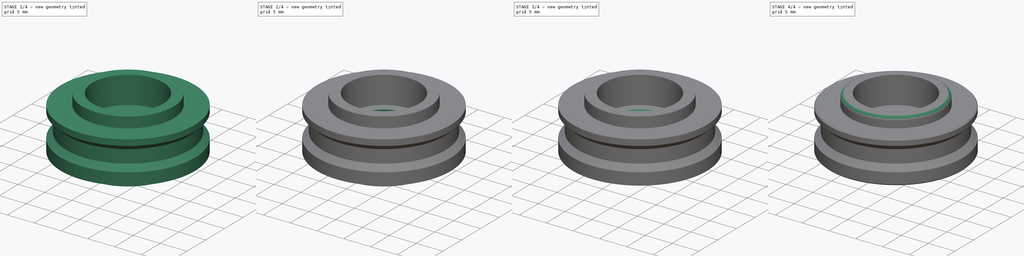
[diagram: build sequence overview — one tinted view per stage of 4, left to right]
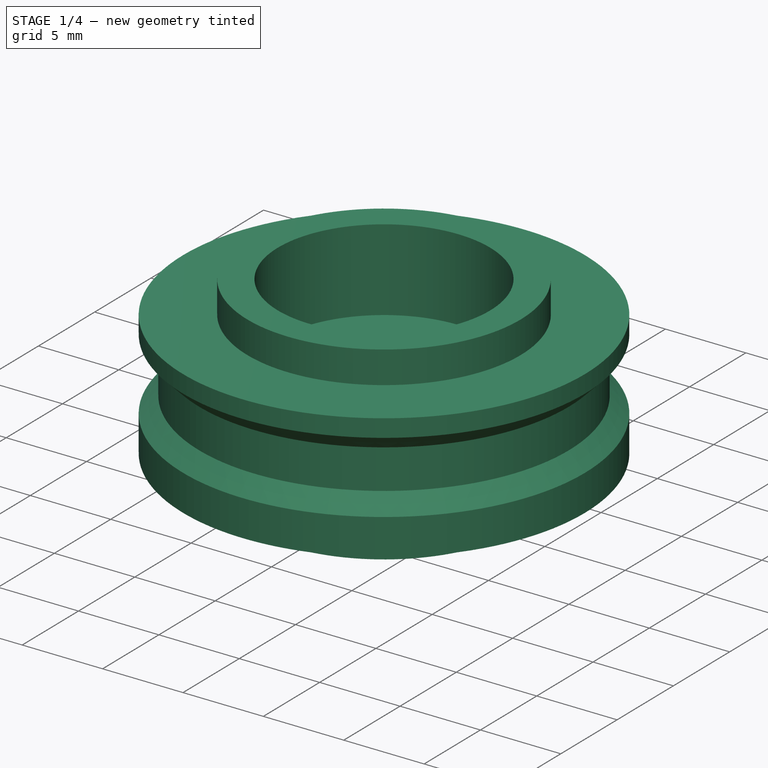
[diagram: stage 1 of 4 — iso view after this stage's code; geometry added in this stage tinted green]
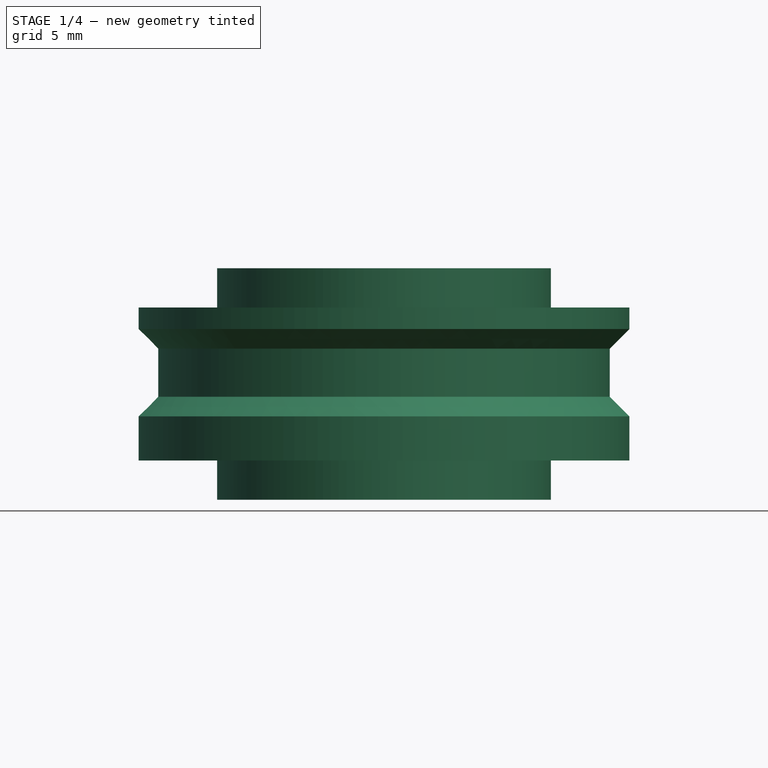
[diagram: stage 1 of 4 — front view after this stage's code; geometry added in this stage tinted green]
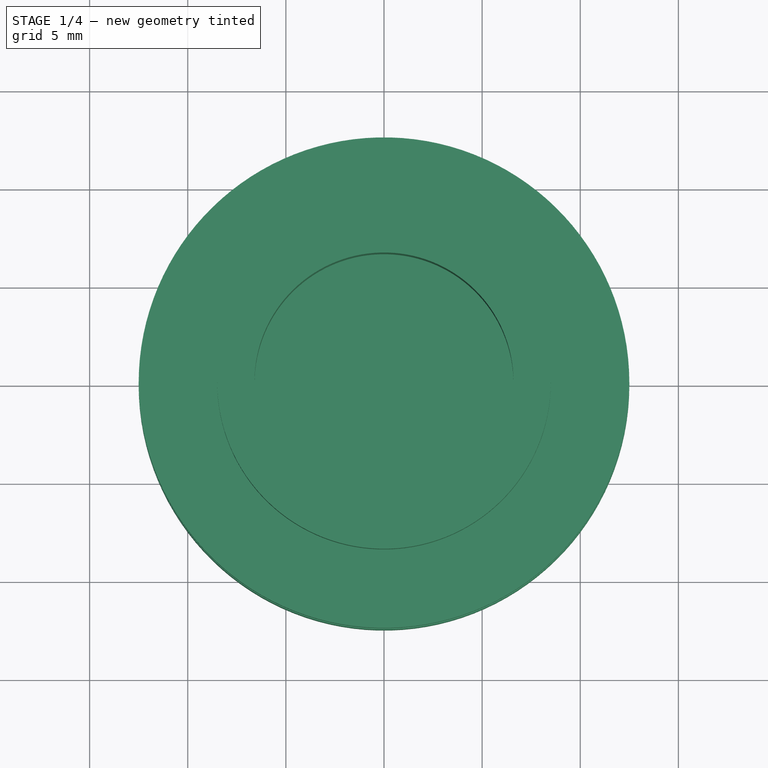
[diagram: stage 1 of 4 — top view after this stage's code; geometry added in this stage tinted green]
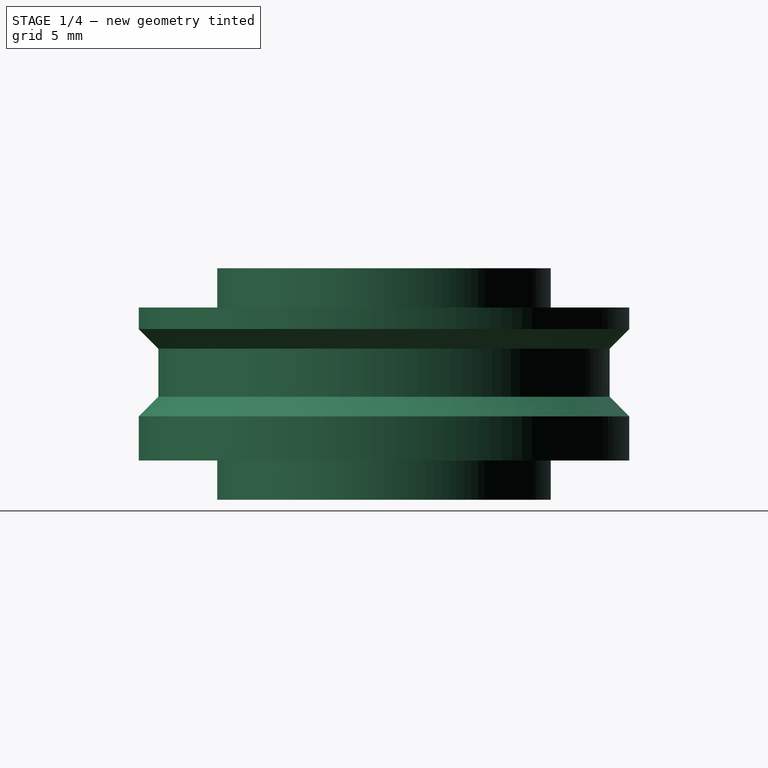
[diagram: stage 1 of 4 — right view after this stage's code; geometry added in this stage tinted green]
FCSTD DOCUMENT  (FreeCAD 0.14R3347 (Git))
Label: pinch-roller
License: CC-BY 3.0
LicenseURL: http://creativecommons.org/licenses/by/3.0/
objects: Sketcher::SketchObject×4, PartDesign::Fillet×4, PartDesign::Pocket×3, Part::Feature×2, PartDesign::Revolution×1, PartDesign::Chamfer×1
note: 19 computed .brp shape members not serialized (recipe doc carries the construction recipe); baked Part::Feature solids carry a one-line shape summary decoded from their .brp

FEATURE [Sketcher::SketchObject] Sketch
  Placement = pos=(0,0,0) rot=(1,0,0;1.5708rad)
  sketch-geometry (12):
    g0: LineSegment StartX=0 StartY=0 StartZ=0 EndX=8.5 EndY=0 EndZ=0
    g1: LineSegment StartX=8.5 StartY=0 StartZ=0 EndX=8.5 EndY=2 EndZ=0
    g2: LineSegment StartX=8.5 StartY=2 StartZ=0 EndX=12.5 EndY=2 EndZ=0
    g3: LineSegment StartX=12.5 StartY=2 StartZ=0 EndX=12.5 EndY=4.25 EndZ=0
    g4: LineSegment StartX=12.5 StartY=4.25 StartZ=0 EndX=11.5 EndY=5.25 EndZ=0
    g5: LineSegment StartX=11.5 StartY=5.25 StartZ=0 EndX=11.5 EndY=7.7 EndZ=0
    g6: LineSegment StartX=11.5 StartY=7.7 StartZ=0 EndX=12.5 EndY=8.7 EndZ=0
    g7: LineSegment StartX=12.5 StartY=8.7 StartZ=0 EndX=12.5 EndY=9.8 EndZ=0
    g8: LineSegment StartX=12.5 StartY=9.8 StartZ=0 EndX=8.5 EndY=9.8 EndZ=0
    g9: LineSegment StartX=8.5 StartY=9.8 StartZ=0 EndX=8.5 EndY=11.8 EndZ=0
    g10: LineSegment StartX=8.5 StartY=11.8 StartZ=0 EndX=0 EndY=11.8 EndZ=0
    g11: LineSegment StartX=0 StartY=11.8 StartZ=0 EndX=0 EndY=0 EndZ=0
  constraints (35):
    c: Horizontal(g0)
    c: Vertical(g1)
    c: Coincident(g1,g2)
    c: Horizontal(g2)
    c: Coincident(g2,g3)
    c: Vertical(g3)
    c: Coincident(g3,g4)
    c: Coincident(g4,g5)
    c: Vertical(g5)
    c: Coincident(g5,g6)
    c: Coincident(g6,g7)
    c: Vertical(g7)
    c: Coincident(g7,g8)
    c: Horizontal(g8)
    c: Coincident(g8,g9)
    c: Vertical(g9)
    c: Coincident(g9,g10)
    c: PointOnObject(g10,g-2)
    c: Horizontal(g10)
    c: Coincident(g10,g11)
    c: Coincident(g11,g-1)
    c: Angle(g4) = 2.35619
    c: Angle(g6) = 0.785398
    c: DistanceY(g7,g6) = -1.1
    c: DistanceY(g3,g2) = -2.25
    c: DistanceY(g2,g7) = 7.8
    c: DistanceX(g3,g4) = -1
    c: DistanceX(g6) = 12.5
    c: DistanceX(g5,g6) = 1
    c: Coincident(g1,g0)
    c: Coincident(g0,g-1)
    c: DistanceX(g0,g2) = 4
    c: Equal(g9,g1)
    c: DistanceY(g1,g0) = -2
    c: Equal(g2,g8)
FEATURE [PartDesign::Revolution] Revolution
  Angle = 360
  Axis = (0,0,1)
  Base = (0,0,0)
  Placement = pos=(0,0,0) rot=(1,0,0;1.5708rad)
  ReferenceAxis = -> Sketch [V_Axis]
  Reversed = true
  Sketch = -> Sketch
FEATURE [Sketcher::SketchObject] Sketch001
  Placement = pos=(0,0,11.8) rot=(0,0,1;3.14159rad)
  Support = -> Revolution [Face11]
  sketch-geometry (1):
    g0: Circle CenterX=0 CenterY=0 CenterZ=0 NormalX=0 NormalY=0 NormalZ=1 Radius=6.6
  constraints (2):
    c: Coincident(g0,g-1)
    c: Radius(g0) = 6.6
FEATURE [PartDesign::Pocket] Pocket
  Length = 5.1
  Placement = pos=(0,0,0) rot=(1,0,0;1.5708rad)
  Sketch = -> Sketch001
  Type = 0
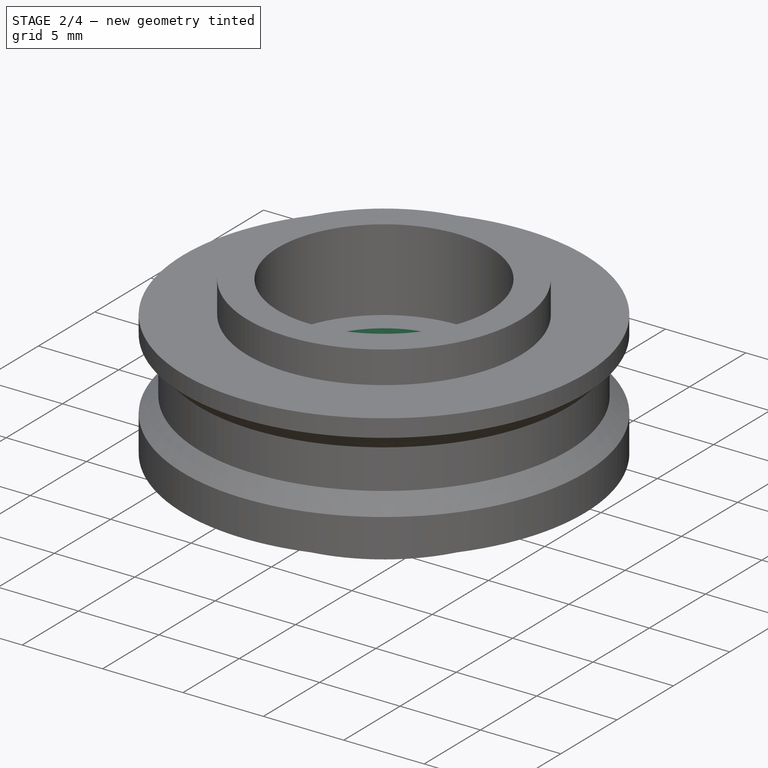
[diagram: stage 2 of 4 — iso view after this stage's code; geometry added in this stage tinted green]
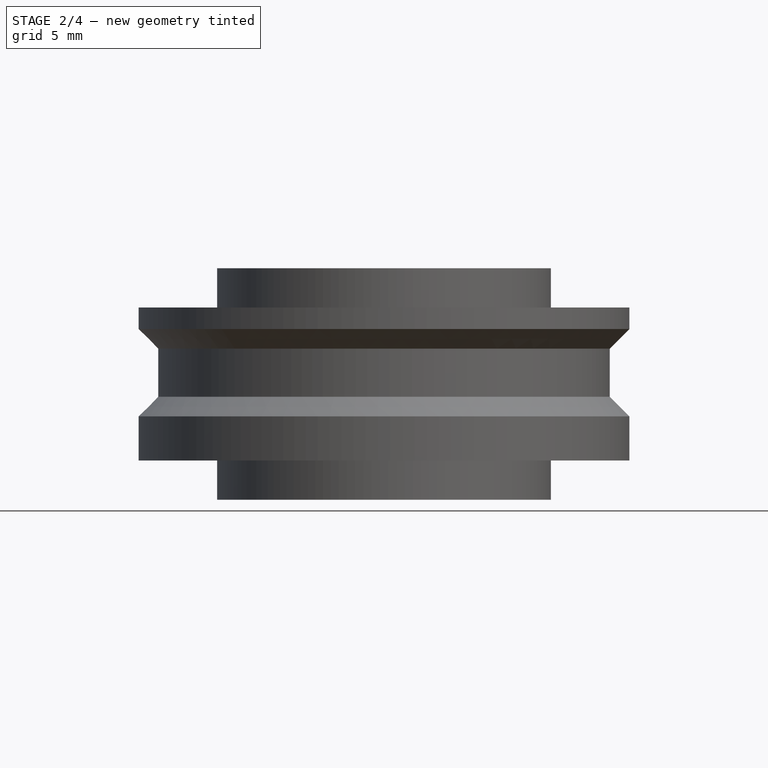
[diagram: stage 2 of 4 — front view after this stage's code; geometry added in this stage tinted green]
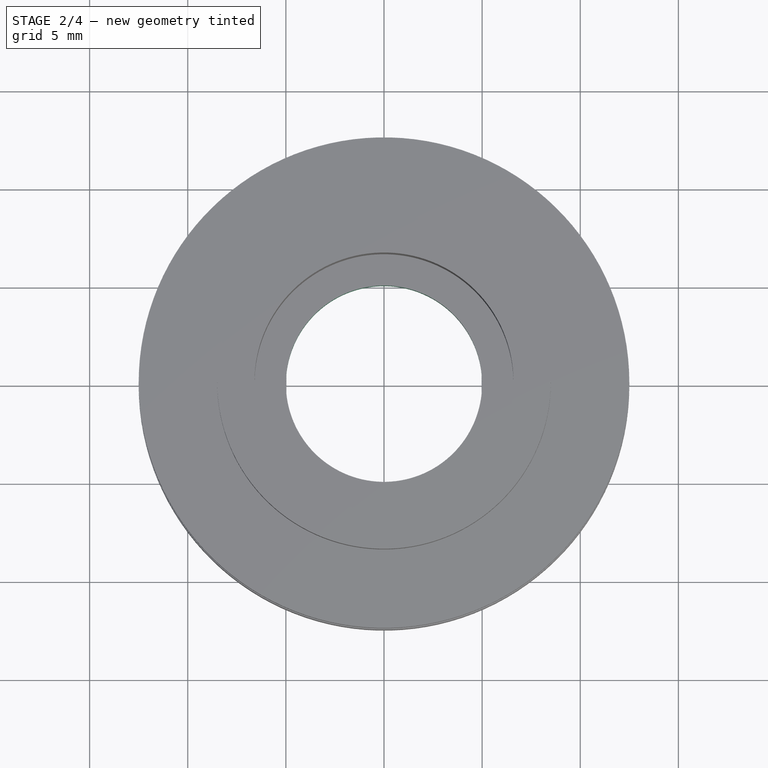
[diagram: stage 2 of 4 — top view after this stage's code; geometry added in this stage tinted green]
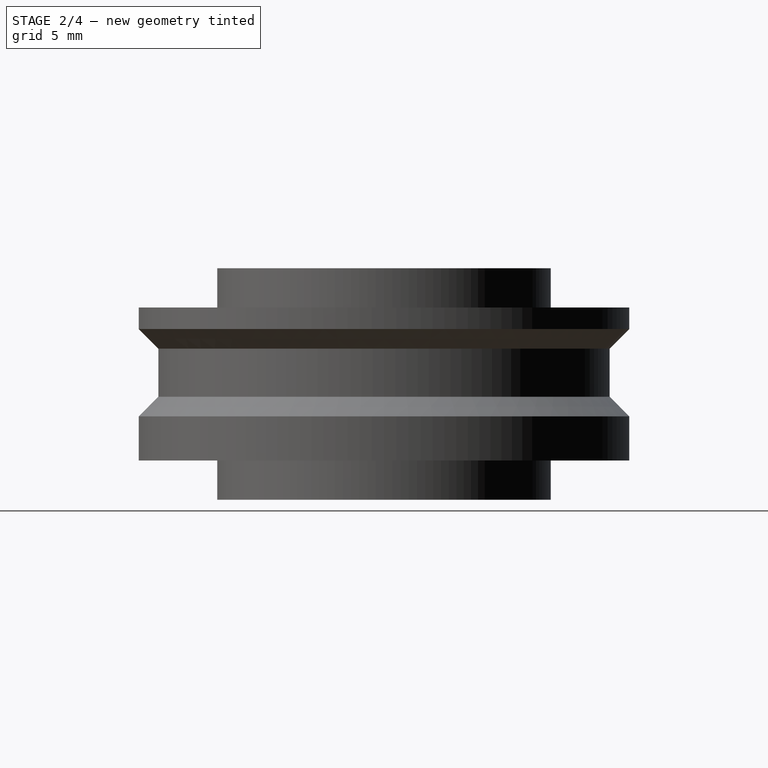
[diagram: stage 2 of 4 — right view after this stage's code; geometry added in this stage tinted green]
FEATURE [Sketcher::SketchObject] Sketch002
  Placement = pos=(0,0,0) rot=(1,0,0;3.14159rad)
  Support = -> Pocket [Face1]
  sketch-geometry (1):
    g0: Circle CenterX=0 CenterY=0 CenterZ=0 NormalX=0 NormalY=0 NormalZ=1 Radius=6.6
  constraints (2):
    c: Coincident(g0,g-1)
    c: Radius(g0) = 6.6
FEATURE [PartDesign::Pocket] Pocket001
  Length = 5
  Placement = pos=(0,0,0) rot=(1,0,0;1.5708rad)
  Sketch = -> Sketch002
  Type = 0
FEATURE [Sketcher::SketchObject] Sketch003
  Placement = pos=(0,0,5) rot=(1,0,0;3.14159rad)
  Support = -> Pocket001 [Face5]
  sketch-geometry (1):
    g0: Circle CenterX=0 CenterY=0 CenterZ=0 NormalX=0 NormalY=0 NormalZ=1 Radius=5
  constraints (2):
    c: Coincident(g0,g-1)
    c: Radius(g0) = 5
FEATURE [PartDesign::Pocket] Pocket002
  Length = 5
  Placement = pos=(0,0,0) rot=(1,0,0;1.5708rad)
  Sketch = -> Sketch003
  Type = 1
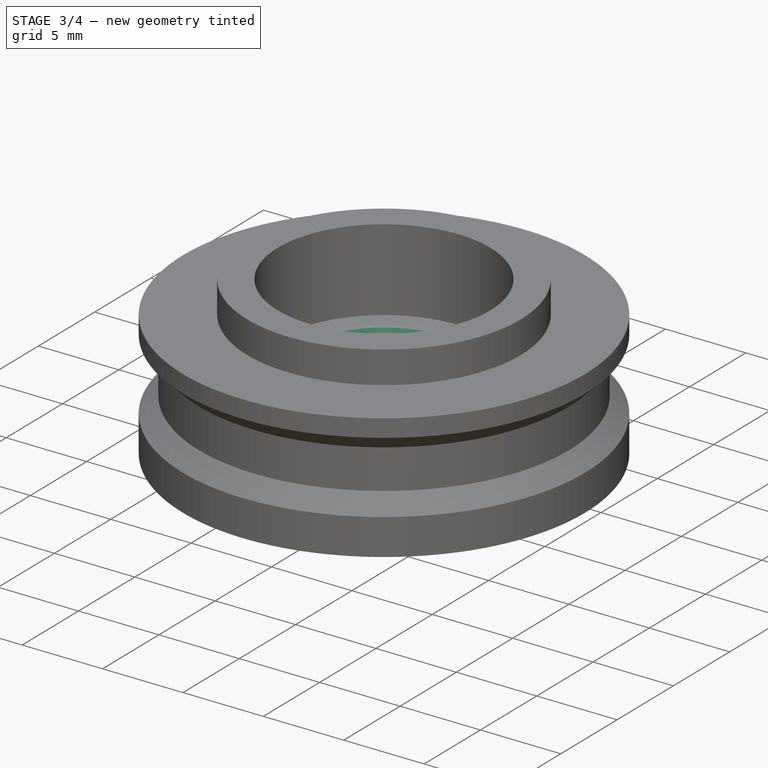
[diagram: stage 3 of 4 — iso view after this stage's code; geometry added in this stage tinted green]
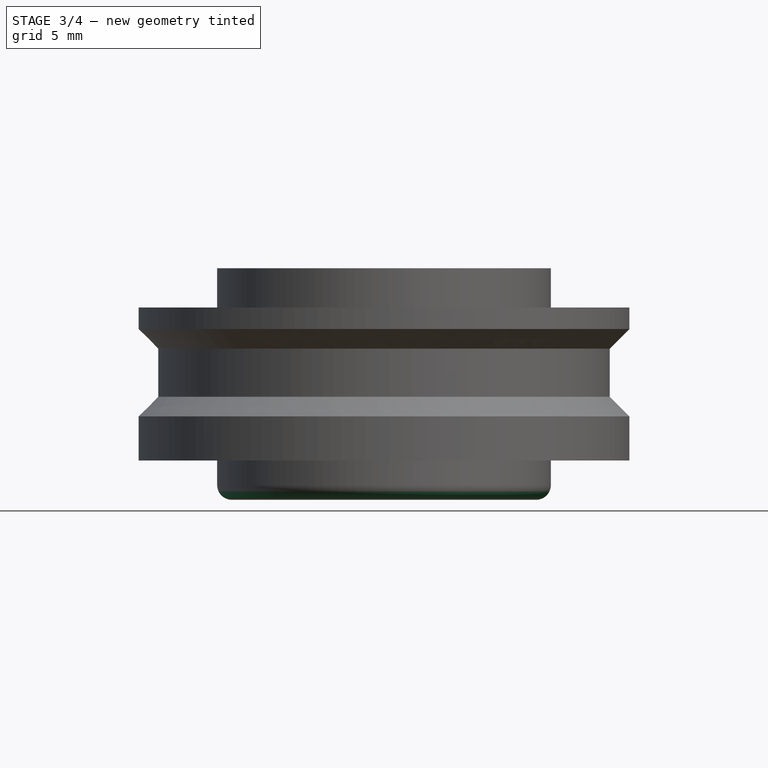
[diagram: stage 3 of 4 — front view after this stage's code; geometry added in this stage tinted green]
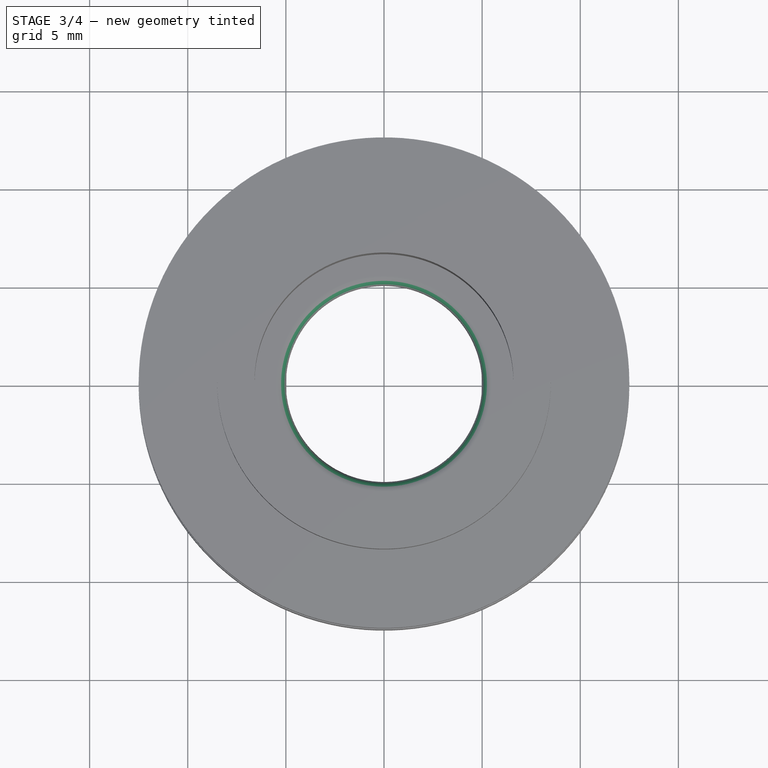
[diagram: stage 3 of 4 — top view after this stage's code; geometry added in this stage tinted green]
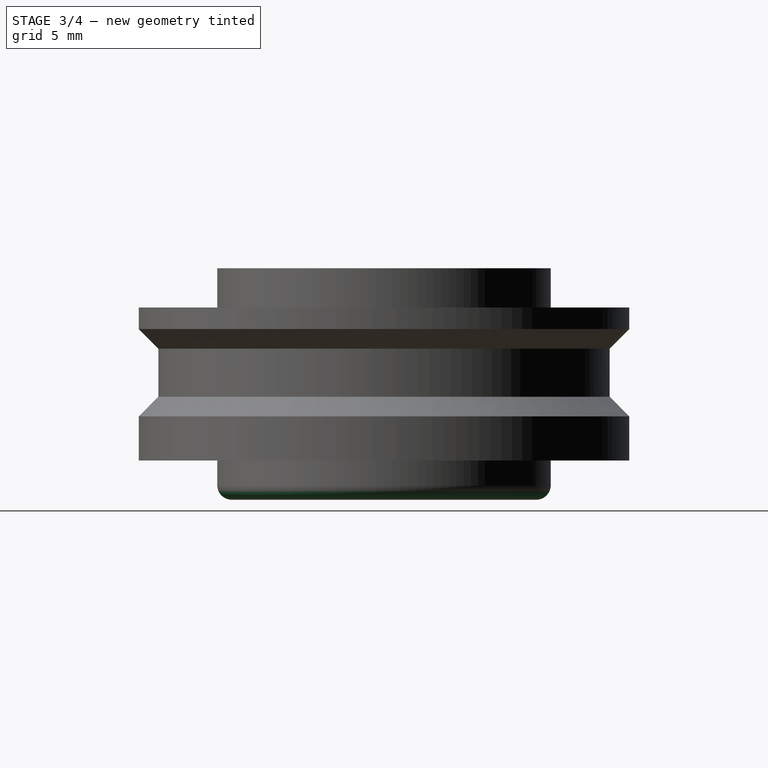
[diagram: stage 3 of 4 — right view after this stage's code; geometry added in this stage tinted green]
FEATURE [PartDesign::Fillet] Fillet
  Base = -> Pocket002 [Edge12]
  Placement = pos=(0,0,0) rot=(1,0,0;1.5708rad)
  Radius = 0.5
FEATURE [PartDesign::Fillet] Fillet001
  Base = -> Fillet [Edge3]
  Placement = pos=(0,0,0) rot=(1,0,0;1.5708rad)
  Radius = 0.5
FEATURE [PartDesign::Fillet] Fillet002
  Base = -> Fillet001 [Edge14]
  Placement = pos=(0,0,0) rot=(1,0,0;1.5708rad)
  Radius = 0.75
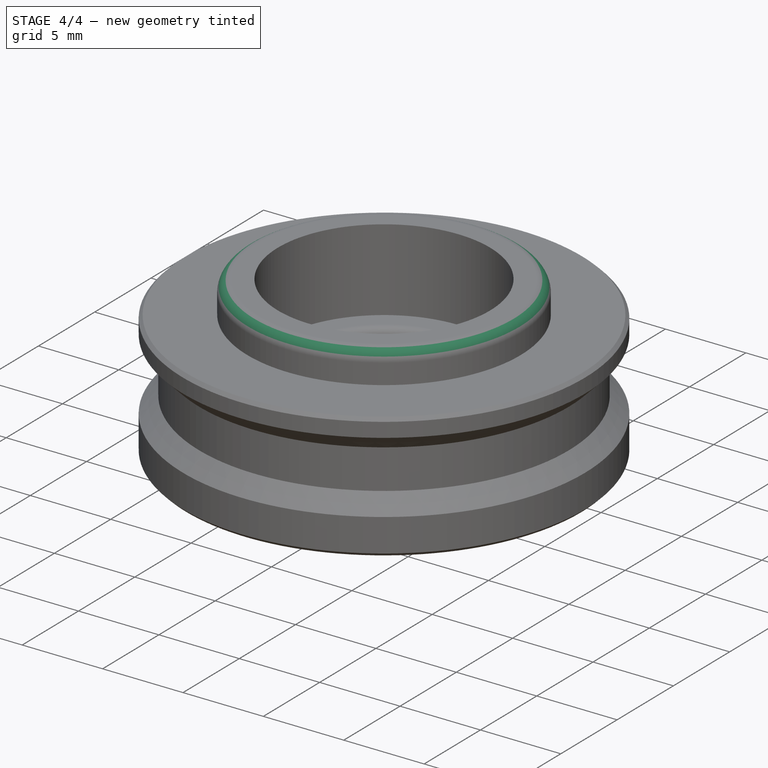
[diagram: stage 4 of 4 — iso view after this stage's code; geometry added in this stage tinted green]
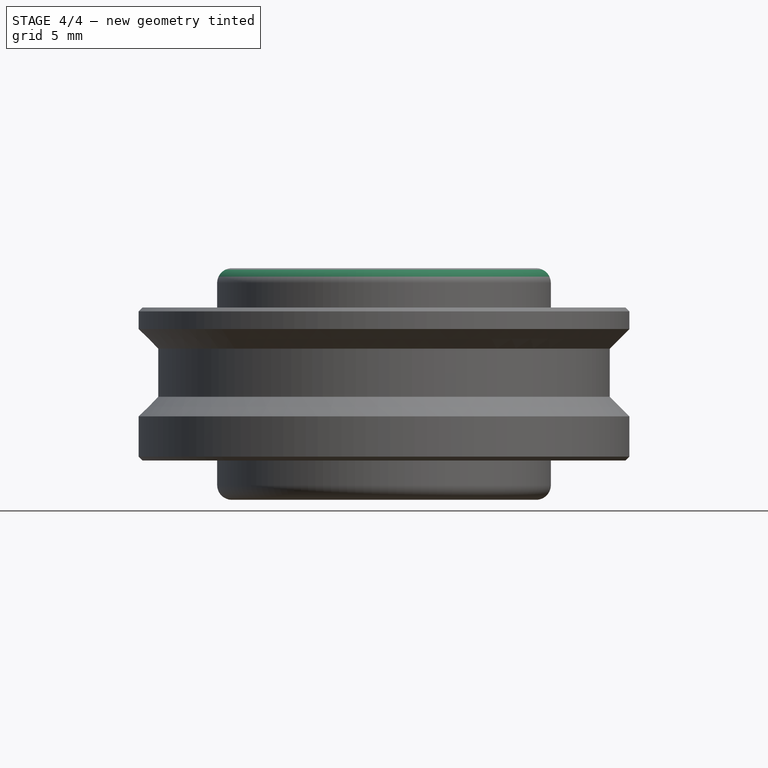
[diagram: stage 4 of 4 — front view after this stage's code; geometry added in this stage tinted green]
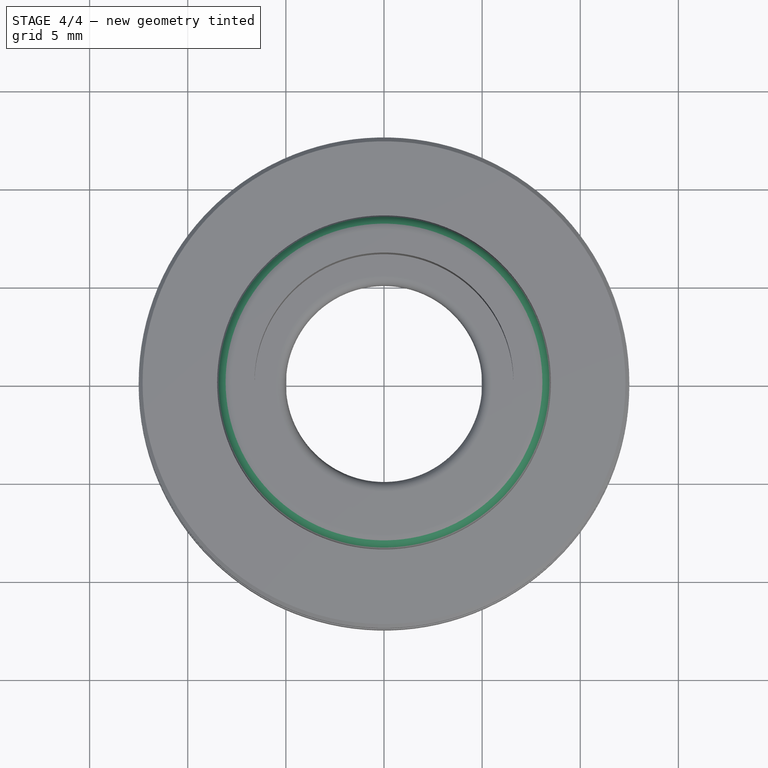
[diagram: stage 4 of 4 — top view after this stage's code; geometry added in this stage tinted green]
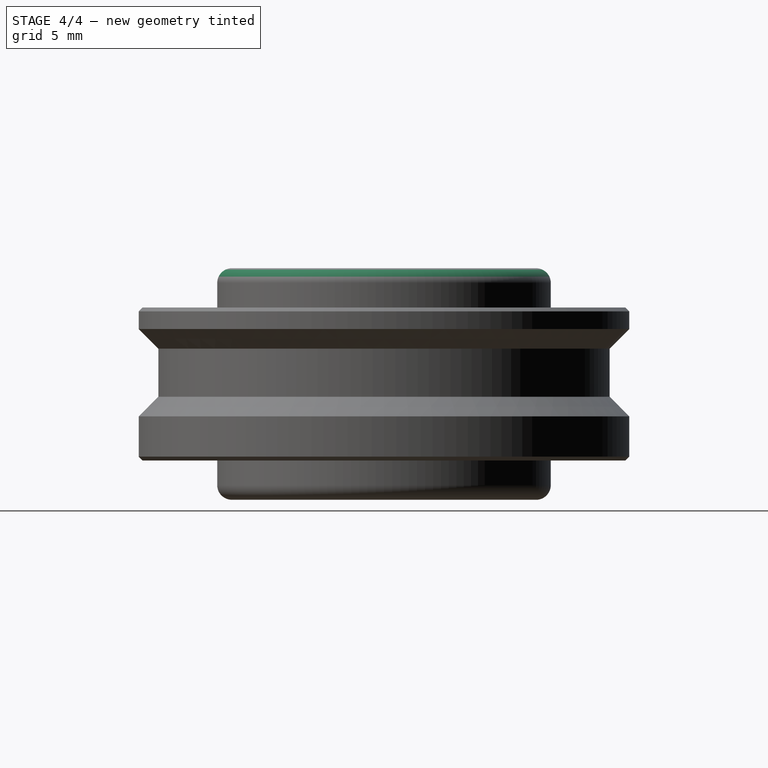
[diagram: stage 4 of 4 — right view after this stage's code; geometry added in this stage tinted green]
FEATURE [PartDesign::Fillet] Fillet003
  Base = -> Fillet002 [Edge30]
  Placement = pos=(0,0,0) rot=(1,0,0;1.5708rad)
  Radius = 0.75
FEATURE [PartDesign::Chamfer] Chamfer
  Base = -> Fillet003 [Edge28,Edge10]
  Placement = pos=(0,0,0) rot=(1,0,0;1.5708rad)
  Size = 0.2
FEATURE [Part::Feature] Chamfer_solid  label="Chamfer (Solid)"
  shape: bbox 25 x 25 x 11.8 mm, 22 faces (baked)
FEATURE [Part::Feature] Chamfer_solid001  label="Chamfer Refined"
  shape: bbox 25 x 25 x 11.8 mm, 22 faces (baked)
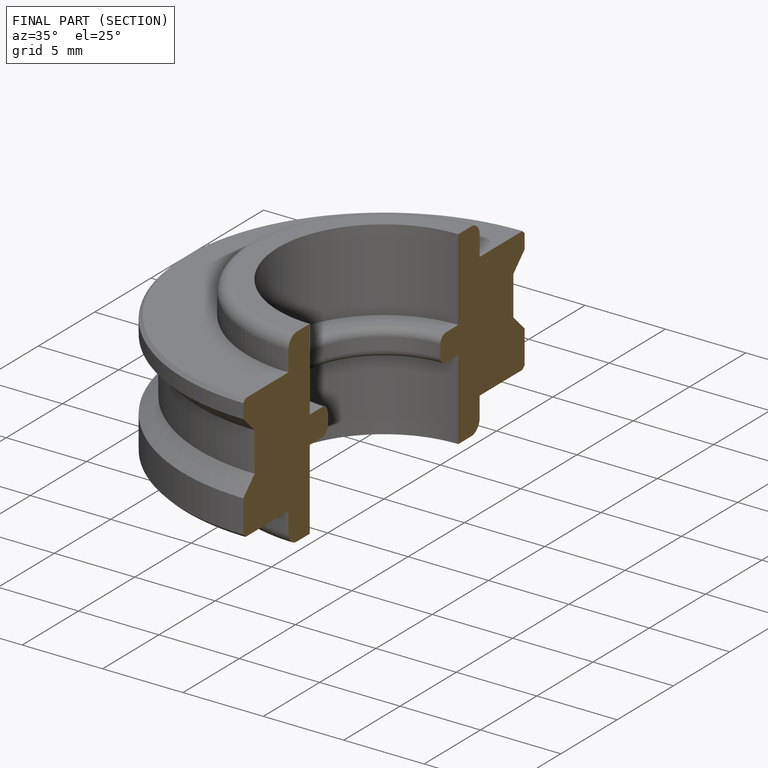
[diagram: finished part — half-section view (interior)]
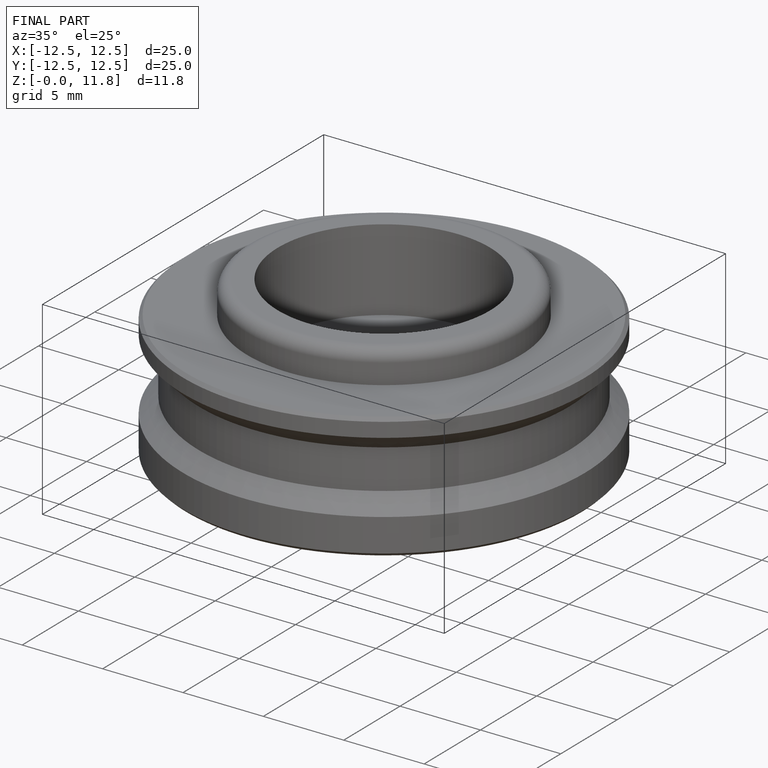
[diagram: finished part — iso view with bounding-box wireframe]
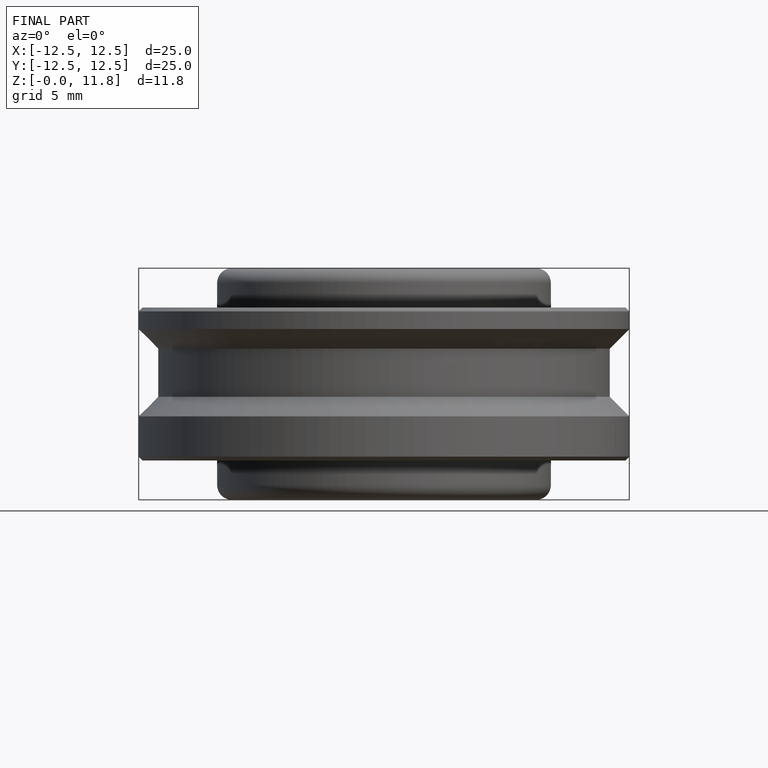
[diagram: finished part — front view with bounding-box wireframe]
